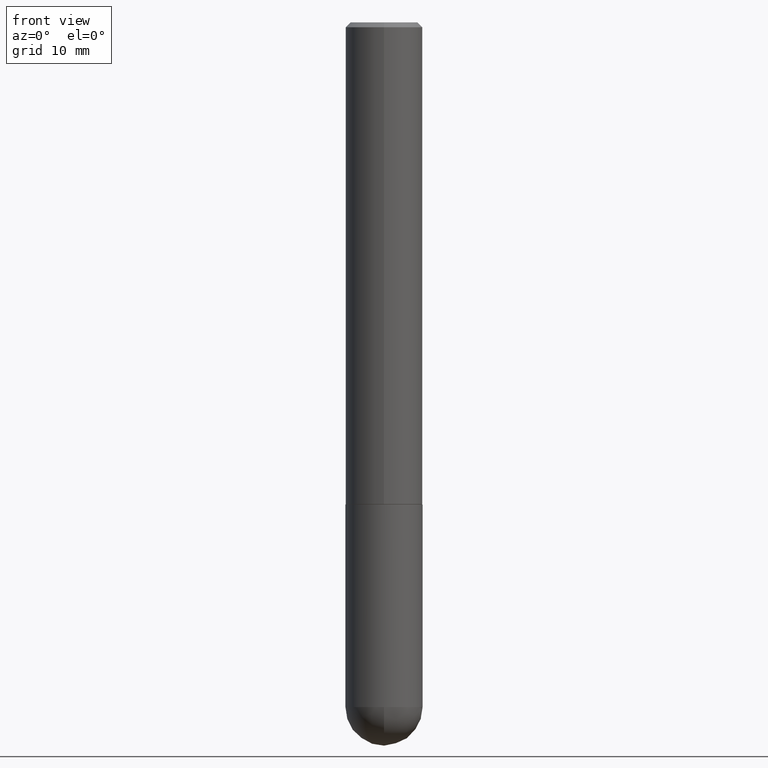
[diagram: clean part render]
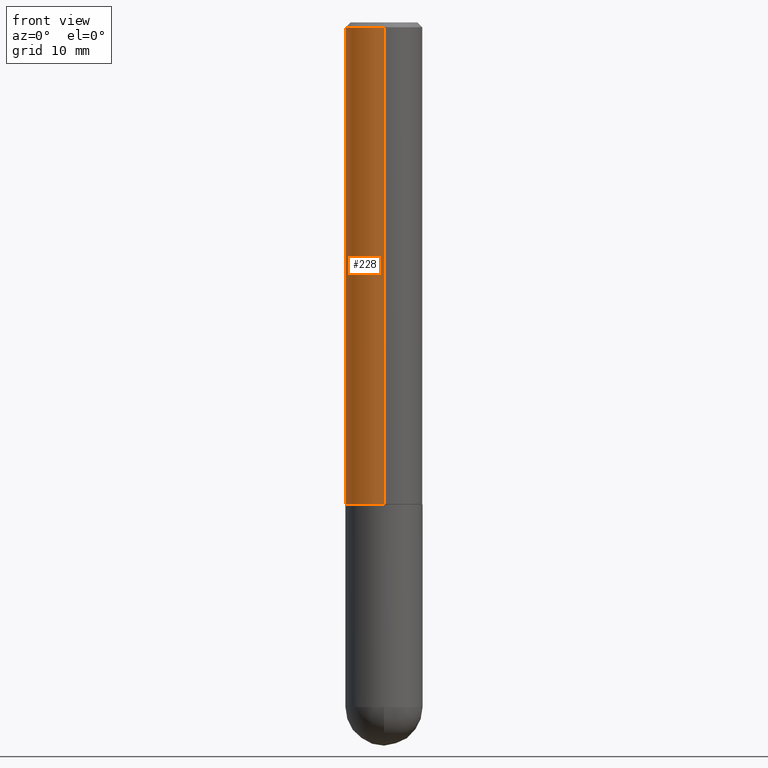
[diagram: same view with one face highlighted and labeled with its STEP entity id]
A machine part, front view. The second image highlights one B-rep face of the part: STEP entity #228.
In plain terms, the highlighted cylindrical surface (partial cylindrical patch) has radius 4.0005 mm, axis along (-0, 0, 1).
Its self-contained STEP definition (entity closure, byte-faithful):
#8 = LINE ( 'NONE', #175, #260 ) ;
#20 = CARTESIAN_POINT ( 'NONE',  ( 4.905212484552274391E-31, -6.962520248246417464E-17, -0.02000000000000003164 ) ) ;
#44 = DIRECTION ( 'NONE',  ( -2.452606242276134078E-29, 3.481260124123204048E-15, 1.000000000000000000 ) ) ;
#52 = ORIENTED_EDGE ( 'NONE', *, *, #101, .T. ) ;
#57 = EDGE_CURVE ( 'NONE', #182, #65, #8, .T. ) ;
#65 = VERTEX_POINT ( 'NONE', #75 ) ;
#72 = AXIS2_PLACEMENT_3D ( 'NONE', #276, #213, #249 ) ;
#74 = DIRECTION ( 'NONE',  ( -2.452606242276134078E-29, 3.481260124123204048E-15, 1.000000000000000000 ) ) ;
#75 = CARTESIAN_POINT ( 'NONE',  ( 1.099816621735586889E-15, 0.1574999999999998901, -0.02000000000000057634 ) ) ;
#87 = CYLINDRICAL_SURFACE ( 'NONE', #72, 0.1575000000000000844 ) ;
#89 = VERTEX_POINT ( 'NONE', #300 ) ;
#100 = VECTOR ( 'NONE', #74, 39.37007874015748143 ) ;
#101 = EDGE_CURVE ( 'NONE', #182, #89, #359, .T. ) ;
#130 = CIRCLE ( 'NONE', #187, 0.1574999999999999456 ) ;
#132 = LINE ( 'NONE', #319, #100 ) ;
#175 = CARTESIAN_POINT ( 'NONE',  ( 1.119104808822158195E-15, 0.1575000000000000844, -5.482984695494049531E-16 ) ) ;
#181 = CARTESIAN_POINT ( 'NONE',  ( 4.825502781678292621E-29, -6.849379294212400691E-15, -1.967499999999999805 ) ) ;
#182 = VERTEX_POINT ( 'NONE', #265 ) ;
#185 = DIRECTION ( 'NONE',  ( -2.452606242276133797E-29, 3.481260124123203654E-15, 1.000000000000000000 ) ) ;
#187 = AXIS2_PLACEMENT_3D ( 'NONE', #20, #185, #217 ) ;
#213 = DIRECTION ( 'NONE',  ( -2.452606242276133797E-29, 3.481260124123203654E-15, 1.000000000000000000 ) ) ;
#217 = DIRECTION ( 'NONE',  ( -6.982962677686265922E-15, -1.000000000000000000, 3.469013325287954477E-15 ) ) ;
#228 = ADVANCED_FACE ( 'NONE', ( #362 ), #87, .T. ) ;
#239 = AXIS2_PLACEMENT_3D ( 'NONE', #181, #272, #325 ) ;
#244 = ORIENTED_EDGE ( 'NONE', *, *, #388, .T. ) ;
#249 = DIRECTION ( 'NONE',  ( -6.982962677686265922E-15, -1.000000000000000000, 3.481260124123204048E-15 ) ) ;
#256 = ORIENTED_EDGE ( 'NONE', *, *, #57, .F. ) ;
#260 = VECTOR ( 'NONE', #44, 39.37007874015748143 ) ;
#265 = CARTESIAN_POINT ( 'NONE',  ( 1.119104808822183241E-15, 0.1574999999999933398, -1.967500000000000249 ) ) ;
#268 = EDGE_CURVE ( 'NONE', #65, #375, #130, .T. ) ;
#272 = DIRECTION ( 'NONE',  ( -2.452606242276133797E-29, 3.481260124123203654E-15, 1.000000000000000000 ) ) ;
#276 = CARTESIAN_POINT ( 'NONE',  ( 0.000000000000000000, 0.000000000000000000, 0.000000000000000000 ) ) ;
#283 = ORIENTED_EDGE ( 'NONE', *, *, #268, .F. ) ;
#300 = CARTESIAN_POINT ( 'NONE',  ( -1.099816621735539951E-15, -0.1575000000000070510, -1.967499999999999138 ) ) ;
#319 = CARTESIAN_POINT ( 'NONE',  ( -1.099816621735587480E-15, -0.1575000000000000844, 5.482984695494049531E-16 ) ) ;
#325 = DIRECTION ( 'NONE',  ( -6.982962677686265922E-15, -1.000000000000000000, 3.469013325287948955E-15 ) ) ;
#355 = CARTESIAN_POINT ( 'NONE',  ( -1.080528434649015385E-15, -0.1575000000000000289, -0.01999999999999948347 ) ) ;
#359 = CIRCLE ( 'NONE', #239, 0.1575000000000001954 ) ;
#362 = FACE_OUTER_BOUND ( 'NONE', #372, .T. ) ;
#372 = EDGE_LOOP ( 'NONE', ( #256, #52, #244, #283 ) ) ;
#375 = VERTEX_POINT ( 'NONE', #355 ) ;
#388 = EDGE_CURVE ( 'NONE', #89, #375, #132, .T. ) ;